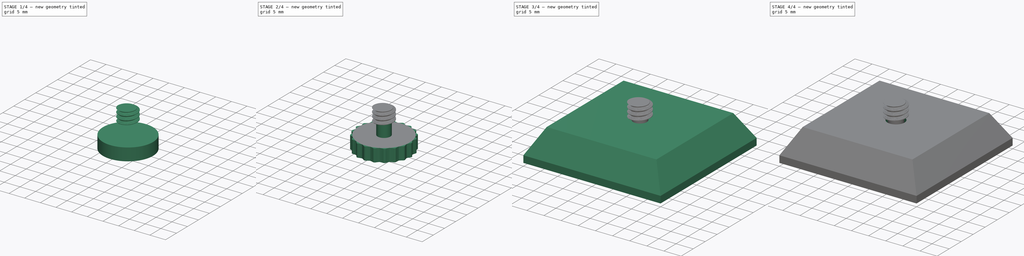
[diagram: build sequence overview — one tinted view per stage of 4, left to right]
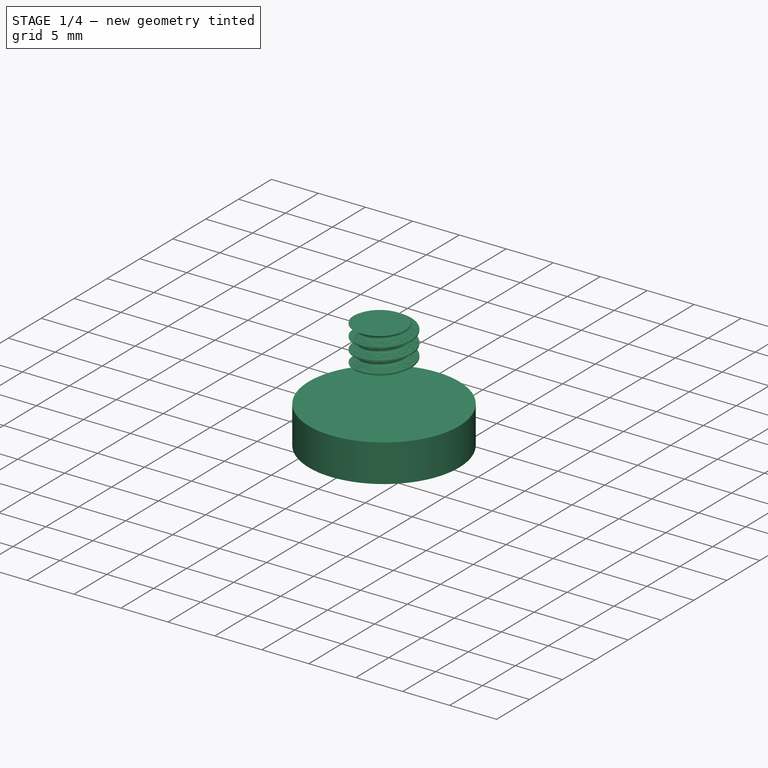
[diagram: stage 1 of 4 — iso view after this stage's code; geometry added in this stage tinted green]
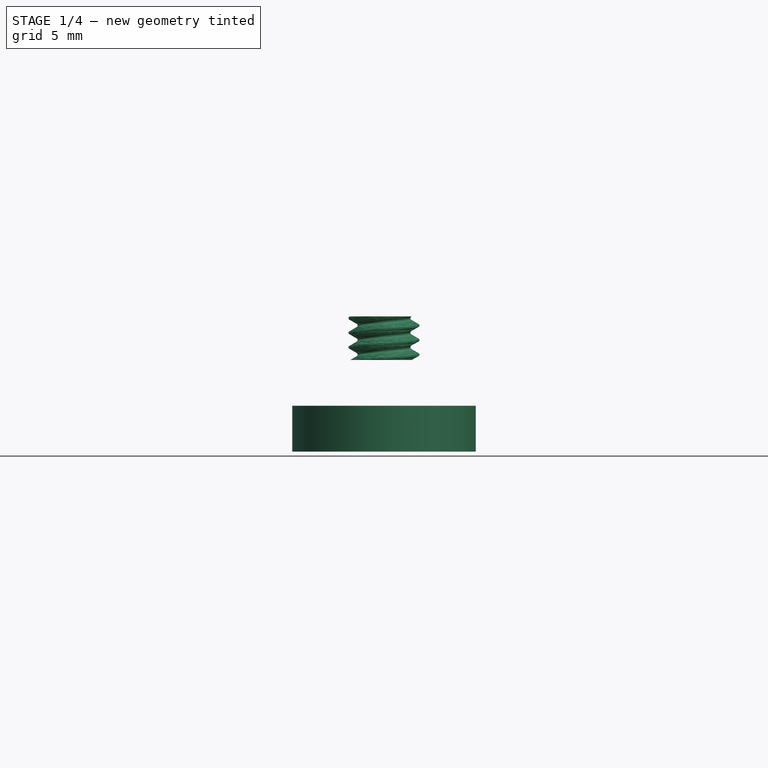
[diagram: stage 1 of 4 — front view after this stage's code; geometry added in this stage tinted green]
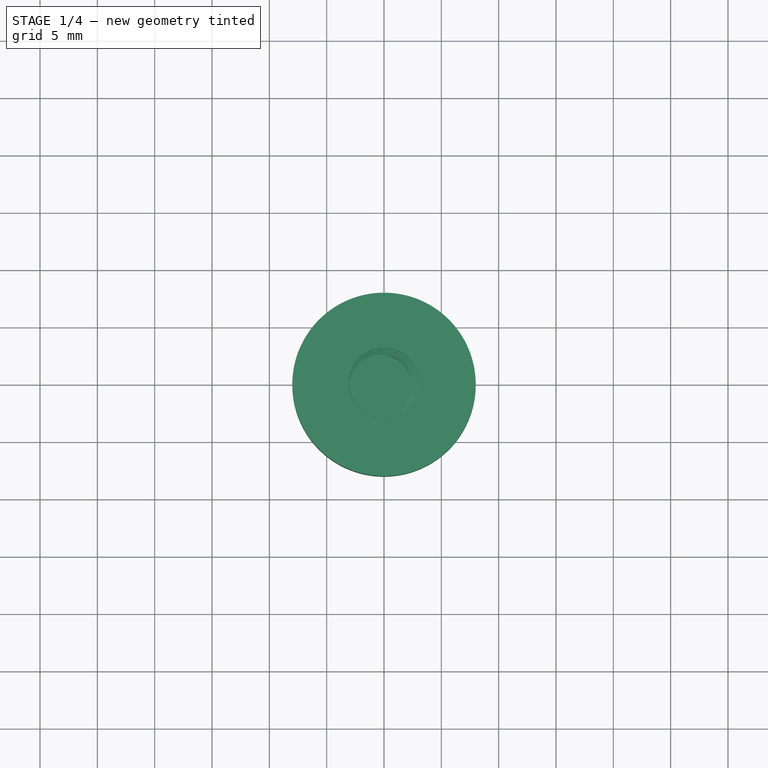
[diagram: stage 1 of 4 — top view after this stage's code; geometry added in this stage tinted green]
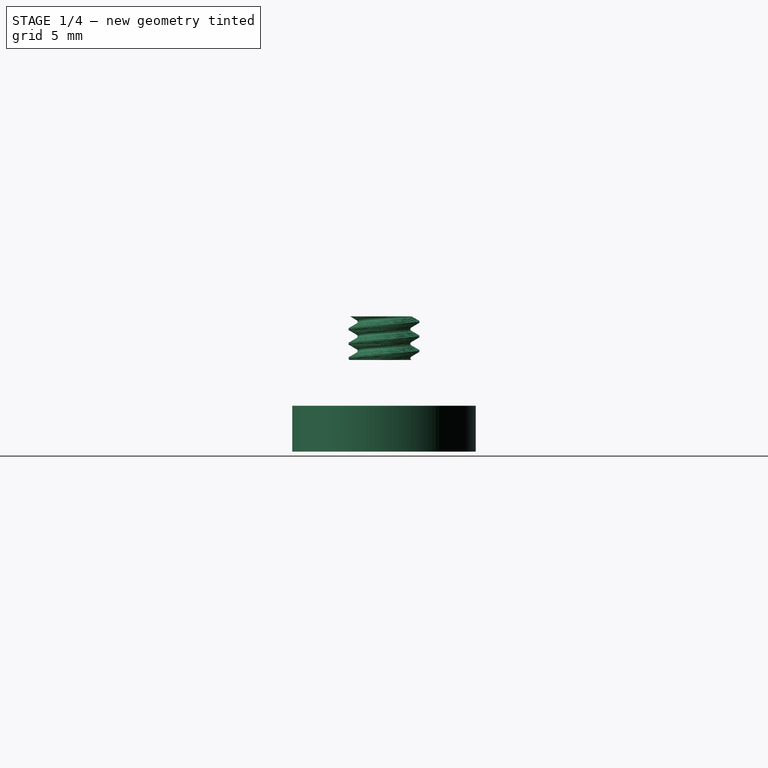
[diagram: stage 1 of 4 — right view after this stage's code; geometry added in this stage tinted green]
FCSTD DOCUMENT  (FreeCAD 0.19R22960 (Git))
Label: lock and screw
License: All rights reserved
LicenseURL: http://en.wikipedia.org/wiki/All_rights_reserved
objects: Sketcher::SketchObject×7, PartDesign::Pad×4, PartDesign::Pocket×2, PartDesign::Body×2, PartDesign::AdditiveLoft×1, Spreadsheet::Sheet×1, PartDesign::Plane×1, PartDesign::PolarPattern×1, Part::Helix×1, Part::Part2DObjectPython×1, Part::Sweep×1, Part::MultiFuse×1
note: 29 computed .brp shape members not serialized (recipe doc carries the construction recipe); baked Part::Feature solids carry a one-line shape summary decoded from their .brp

FEATURE [Spreadsheet::Sheet] Spreadsheet  label="dim"
  cells = A2=LOCK; A3=base X; B3(lock_base_x)=40; A4=base Y; B4(lock_base_y)=40; A5=base Z; B5(lock_base_z)=2; A6=raise X; B6(lock_raise_x)=32; A7=raise Y; B7(lock_raise_y)=32; A8=raise Z; B8(lock_raise_z)=7; A10=PIPE MOUNT; A11=pipe dia; B11(pipe_dia)==pipe_out_d + 0.5; A12=pipe outer dia; B12(pipe_out_d)=20; A13=pipe inner dia; B13(pipe_inner_d)=18.2; A14=pipe dist; B14(pipe_dist)=10; A15=(pipe outside); B15(pipe_outside)==pipe_dist / 2; A16=mount X; B16(pipe_mount_x)==2 * pipe_dia + pipe_dist + 2 * pipe_outside; A17=mount Y; B17(pipe_mount_y)==lock_base_y; A18=mount base Z; B18(pipe_mount_base_z)=4; A19=mount pipe Z; B19(pipe_mount_pipe_z)==pipe_dia / 2 - 1; A21=PIPE SLIDER; A22=thickness; B22(pipe_slider_thickness)=2.5; A23=width; B23(pipe_slider_width)=40; A25=MOUNT SCREW; A26=M6 head circumradius; B26(mount_screw_M6_head_circrad)=11.3; A27=M6 head depth; B27(mount_screw_M6_head_depth)=5; A28=M6 shank diameter; B28(mount_screw_M6_shank_d)=6.7; A29=M5 head circumradius; B29(mount_screw_M5_head_circrad)=8.9; A30=M5 head depth; B30(mount_screw_M5_head_depth)=4; A31=M5 shank diameter; B31(mount_screw_M5_shank_d)=5; A33=BUTTON; A34=inner diameter; B34(button_d_in)=15; A35=outer diameter; B35(button_d_out)=25; A36=height; B36(button_h)=15; A38=PIPE CAP; A39=thickness; B39(pipe_cap_thick)=2; A40=bridge; B40(pipe_cap_bridge)==pipe_dia * 3 / 4; A41=depth; B41(pipe_cap_depth)=10; A42=gap; B42(pipe_cap_gap)=1; A44=IPAD; A45=height; B45(ipad_height)=169; A46=thickness; B46(ipad_thick)=8; A48=IPAD GRAB; A49=width; B49(ipad_grab_width)=20; A50=over; B50(ipad_grab_over)=3; A51=thickness; B51(ipad_grab_thick)=3; A52=distance; B52(ipad_grab_distance)=100; A53=undercut; B53(ipad_grab_undercut)=9
FEATURE [Sketcher::SketchObject] Sketch003
  MapMode = 5
  Support = -> [XY_Plane002]
  sketch-geometry (1):
    g0: Circle CenterX=0 CenterY=0 CenterZ=0 NormalX=0 NormalY=0 NormalZ=1 AngleXU=0 Radius=8
  constraints (2):
    c: Coincident(g0,g-1)
    c: Radius(g0) = 8
FEATURE [PartDesign::Pad] Pad001
  Direction = (1,1,1)
  Length = 4
  Length2 = 100
  Profile = -> Sketch003
  Refine = true
  Type = 0
FEATURE [PartDesign::Body] Body002
  Group = -> [Sketch003,Pad001,DatumPlane001,Sketch004,Pad002,PolarPattern,Sketch007,Pad003]
  Origin = -> Origin002
  Tip = -> Pad003
FEATURE [Part::Helix] Helix
  Angle = 0
  AttacherType = Attacher::AttachEngine3D
  Height = 5.08
  LocalCoord = 0
  Pitch = 1.27
  Radius = 1
  Style = 0
  expr: .Placement.Rotation.Axis.z = VThreadProfile.Placement.Rotation.Axis.z
  expr: .Placement.Rotation.Axis.y = VThreadProfile.Placement.Rotation.Axis.y
  expr: .Placement.Rotation.Axis.x = VThreadProfile.Placement.Rotation.Axis.x
  expr: .Placement.Rotation.Angle = VThreadProfile.Placement.Rotation.Angle
  expr: .Placement.Base.z = VThreadProfile.Placement.Base.z
  expr: .Placement.Base.y = VThreadProfile.Placement.Base.y
  expr: .Placement.Base.x = VThreadProfile.Placement.Base.x
  expr: Height = VThreadProfile.ThreadCount * VThreadProfile.Pitch
  expr: Pitch = VThreadProfile.Pitch
FEATURE [Part::Part2DObjectPython] VThreadProfile  # Draft 2D object (typed FeaturePython)
  Area = 22.828
  Closed = true
  Continuity = C3
  Instructions = Expand this with the ... button to view instructions | Sweep this object along a helix of the same pitch to produce your thread. | It is recommended to make the helix in the ThreadProfile workbench. | If there is an active Body the ThreadProfile object will be put into it.,If not it can be dragged and dropped into the body later. | If there is an active Body when the helix is made there will be made a ShapeBinder for it | For internal threads you will need to cut the Sweep object out of a cylinder, or if using Part Design sweep it as a Subtractive Pipe. | Always use Frenet mode | I have provided some presets, but it is possible there could be some errors.  Double check for mission critical applications. | Also, the tolerances might be different from what you wish to have.  I believe the internal minor diameters are all minimum and the external are all maximum.
  InternalOrExternal = 1
  MakeFace = true
  MinorDiameter = 4.79298
  Parameterization = 1
  Pitch = 1.27
  Points = (719) [(2.39341,0.020916,0),(2.39027,0.0417803,0),(2.38706,0.0625944,0),(2.38378,0.0833591,0),(2.38041,0.104075,0),(2.37694,0.124744,0),(2.37339,0.145365,0),+712 more]
  Presets = 213
  Quality = 1
  ThreadCount = 4
  Version = 1.66
  external_data = [-0.00235387,-0.00461052,-0.00677828,-0.00886428,-0.0108747,-0.0128149,-0.0146895,-0.0165028,-0.0182584,-0.0199597,-0.0216095,-0.0232106,-0.0247653,-0.0262759,-0.0277444,-0.0291725,-0.0305621,-0.0319145,-0.0332313,-0.0345138,-0.0357632,+698 more]
  internal_data = [0,0,0,0,0,0,0,0,0,0,0,0,0,0,0,0,0,0,0,0,0,0,0,0,0,0,0,0,0,0,0,0,0,0,0,0,0,0,0,0,0,0,0,0,0,0,0,0,0,0,0,0,0,0,0,0,0,0,0,0,0,0,0,0,0,0,0,0,0,0,0,0,0,0,0,0,0,0,0,0,0,0,0,0,0,0,0,0,0,0,0,0,0,0,0,0,0,0,0,0,0,0,0,0,0,0,0,0,0,0,0,0,0,0,0,0,0,0,0,0,+599 more]
  preset_names = <blob: 3959 chars omitted>
  presets_data = [0,0,0,2.20878,24.1173,24.6888,0.25,0.693,0.729,0.25,0.793,0.829,0.25,0.893,0.929,0.3,1.032,1.075,0.35,1.171,1.221,0.35,1.371,1.421,0.4,1.509,1.567,0.45,1.648,1.713,0.45,1.948,2.013,0.5,2.387,2.459,0.6,2.764,2.85,0.7,3.141,3.242,0.75,3.58,+712 more]
FEATURE [Part::Sweep] Sweep
  Frenet = true
  Placement = pos=(0,0,7.99) rot=(0,0,1;0rad)
  Sections = -> [VThreadProfile]
  Solid = true
  Spine = -> Helix [Edge1,Edge2,Edge3]
  Transition = 1
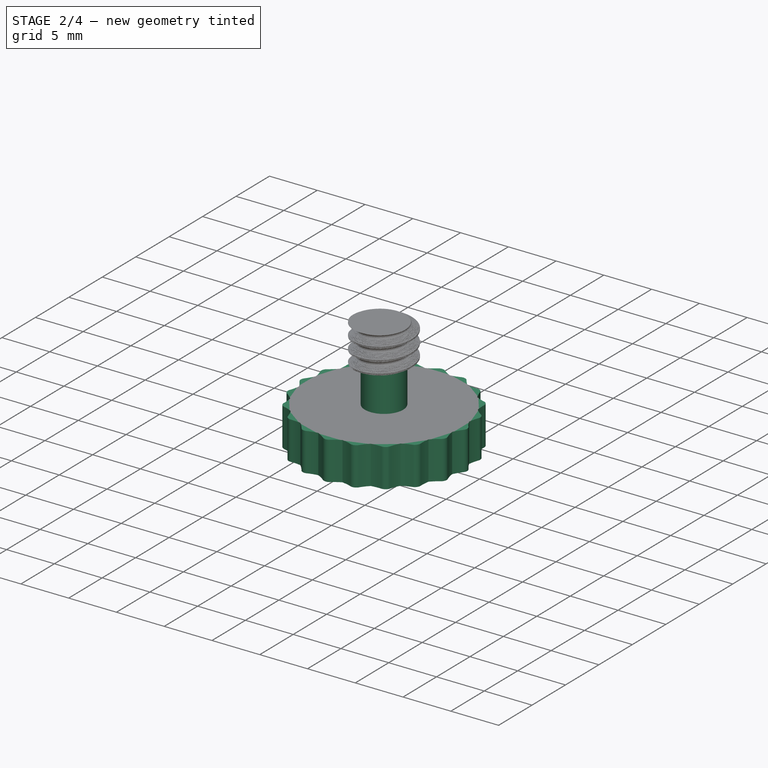
[diagram: stage 2 of 4 — iso view after this stage's code; geometry added in this stage tinted green]
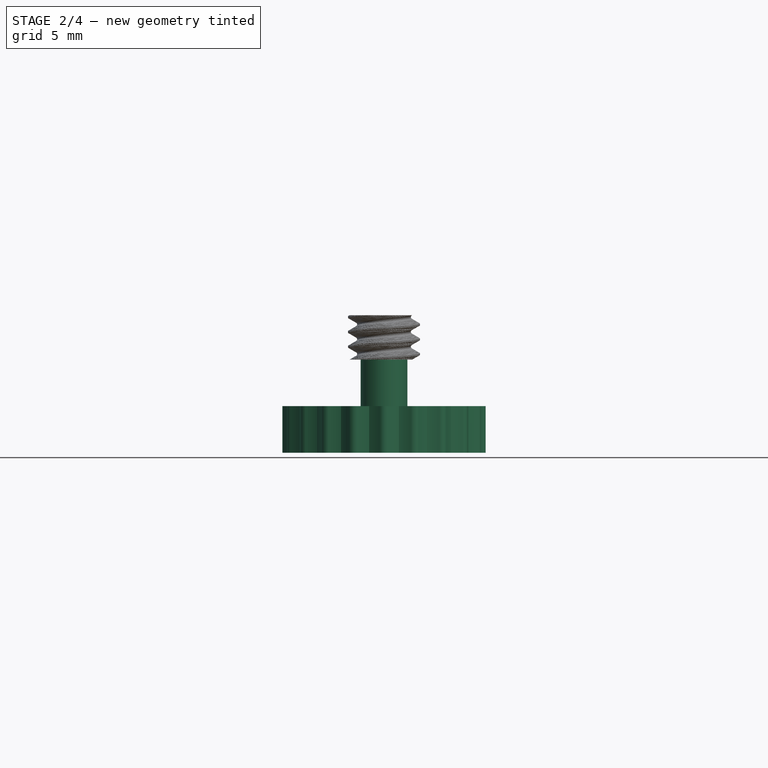
[diagram: stage 2 of 4 — front view after this stage's code; geometry added in this stage tinted green]
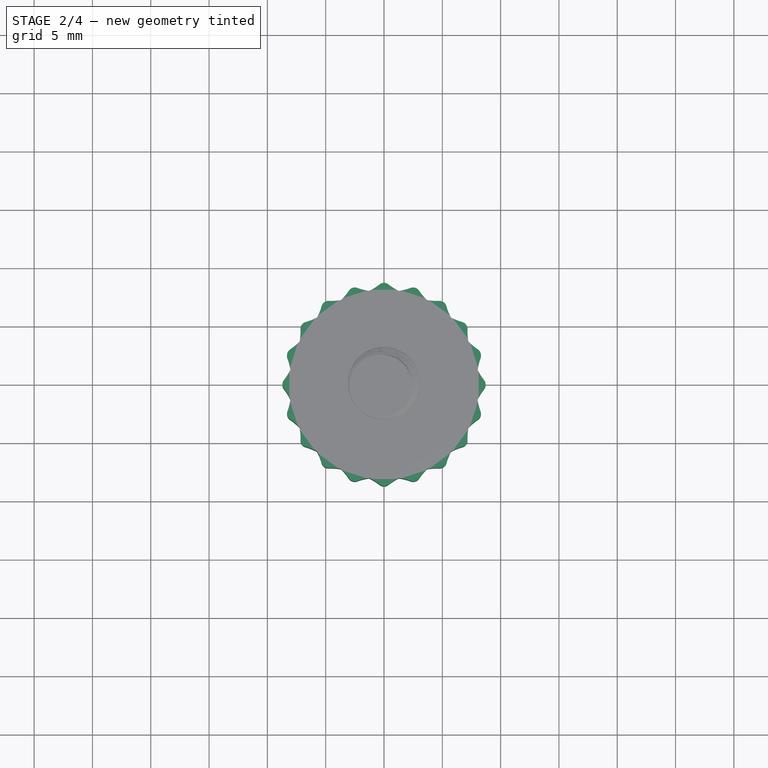
[diagram: stage 2 of 4 — top view after this stage's code; geometry added in this stage tinted green]
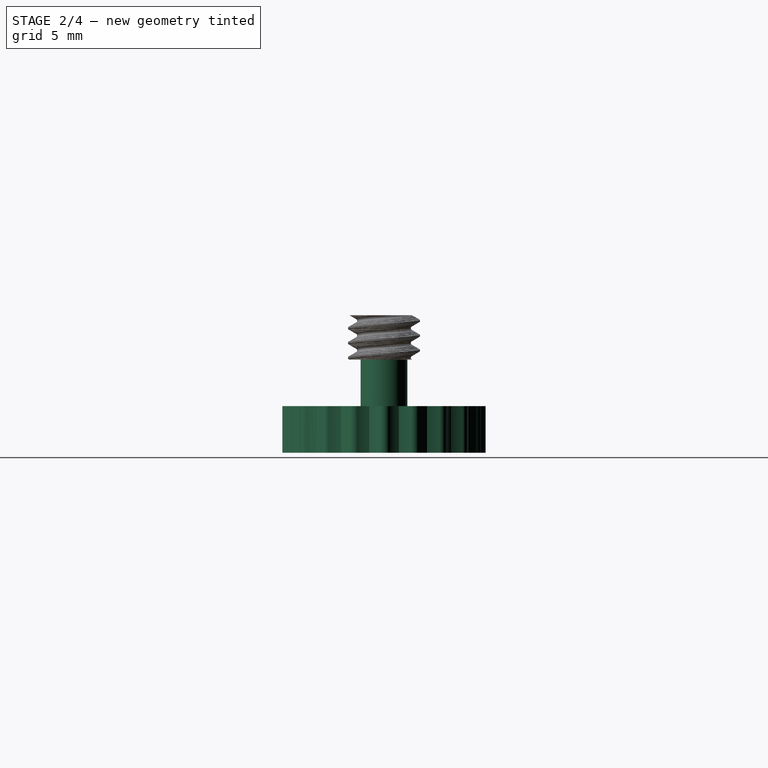
[diagram: stage 2 of 4 — right view after this stage's code; geometry added in this stage tinted green]
FEATURE [PartDesign::Plane] DatumPlane001
  Length = 60
  MapMode = 5
  Placement = pos=(0,0,4) rot=(0,0,1;0rad)
  ResizeMode = 0
  Support = -> [Pad001]
  Width = 60
FEATURE [Sketcher::SketchObject] Sketch004
  ExternalGeometry = -> [Pad001]
  MapMode = 5
  Placement = pos=(0,0,4) rot=(0,0,1;0rad)
  Support = -> [DatumPlane001]
  expr: Constraints[16] = 360 / 12
  sketch-geometry (6):
    g0: LineSegment [constr] StartX=0 StartY=0 StartZ=0 EndX=7.72741 EndY=2.07055 EndZ=0
    g1: LineSegment [constr] StartX=0 StartY=0 StartZ=0 EndX=7.72741 EndY=-2.07055 EndZ=0
    g2: ArcOfCircle CenterX=12.2372 CenterY=3.27894 CenterZ=0 NormalX=0 NormalY=0 NormalZ=1 AngleXU=0 Radius=4.66886 StartAngle=3.40339 EndAngle=3.8133
    g3: ArcOfCircle CenterX=12.2372 CenterY=-3.27894 CenterZ=0 NormalX=0 NormalY=0 NormalZ=1 AngleXU=0 Radius=4.66886 StartAngle=2.46988 EndAngle=2.87979
    g4: ArcOfCircle CenterX=8.11293 CenterY=0 CenterZ=0 NormalX=0 NormalY=0 NormalZ=1 AngleXU=0 Radius=0.6 StartAngle=5.61148 EndAngle=6.95489
    g5: LineSegment StartX=7.72741 StartY=2.07055 StartZ=0 EndX=7.72741 EndY=-2.07055 EndZ=0
  constraints (18):
    c: Coincident(g0,g-1)
    c: PointOnObject(g0,g-3)
    c: Coincident(g1,g-1)
    c: PointOnObject(g1,g-3)
    c: Vertical(g0,g1)
    c: Coincident(g2,g0)
    c: Coincident(g3,g1)
    c: Equal(g2,g3)
    c: Tangent(g3,g-3)
    c: Tangent(g-3,g2)
    c: Vertical(g2,g3)
    c: PointOnObject(g4,g-1)
    c: Coincident(g4,g3)
    c: Tangent(g4,g2) = 1.5708
    c: Coincident(g5,g2)
    c: Coincident(g5,g3)
    c: Angle(g1,g0) = 0.523599
    c: Radius(g4) = 0.6
FEATURE [PartDesign::Pad] Pad002
  BaseFeature = -> Pad001
  Direction = (1,1,1)
  Length = 4
  Length2 = 100
  Profile = -> Sketch004
  Refine = true
  Reversed = true
  Type = 0
FEATURE [PartDesign::PolarPattern] PolarPattern
  Angle = 360
  Axis = -> Sketch004 [N_Axis]
  BaseFeature = -> Pad002
  Occurrences = 20
  Originals = -> [Pad002]
  Refine = true
FEATURE [PartDesign::Body] Body  label="lock"
  Group = -> [Sketch,Pad,Sketch001,AdditiveLoft,Sketch005,Pocket,Sketch006,Pocket001]
  Origin = -> Origin001
  Tip = -> Pocket001
FEATURE [Sketcher::SketchObject] Sketch007
  MapMode = 5
  Placement = pos=(0,0,4) rot=(0,0,1;0rad)
  Support = -> [PolarPattern]
  sketch-geometry (1):
    g0: Circle CenterX=0 CenterY=0 CenterZ=0 NormalX=0 NormalY=0 NormalZ=1 AngleXU=0 Radius=2
  constraints (2):
    c: Coincident(g0,g-1)
    c: Diameter(g0) = 4
FEATURE [PartDesign::Pad] Pad003
  BaseFeature = -> PolarPattern
  Direction = (1,1,1)
  Length = 4
  Length2 = 100
  Profile = -> Sketch007
  Refine = true
  Type = 0
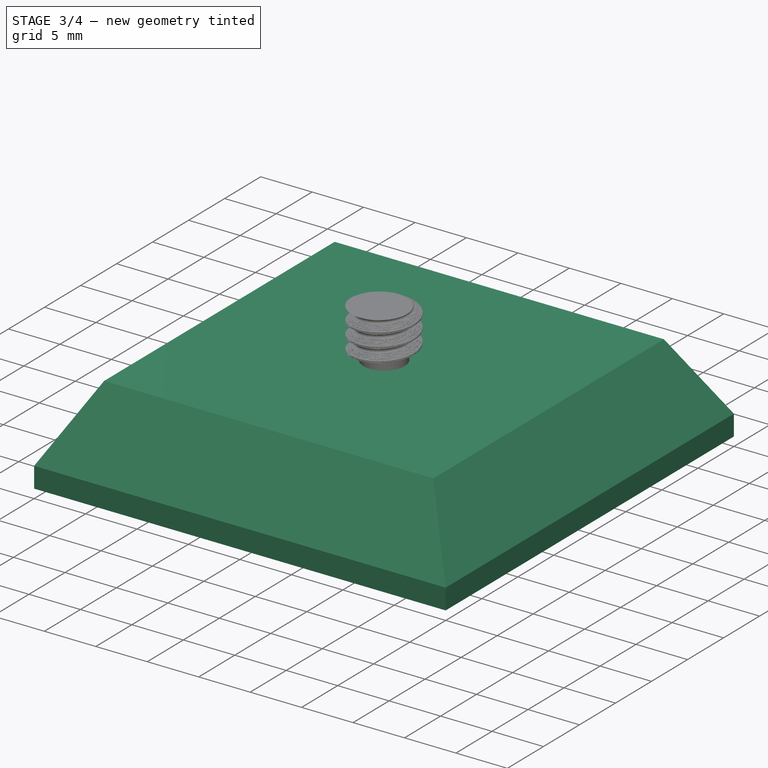
[diagram: stage 3 of 4 — iso view after this stage's code; geometry added in this stage tinted green]
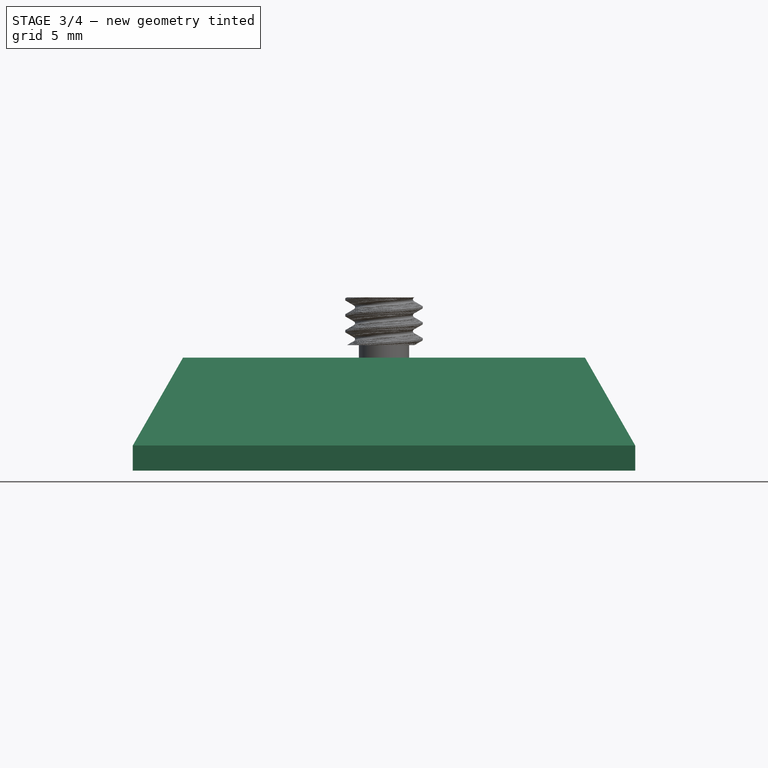
[diagram: stage 3 of 4 — front view after this stage's code; geometry added in this stage tinted green]
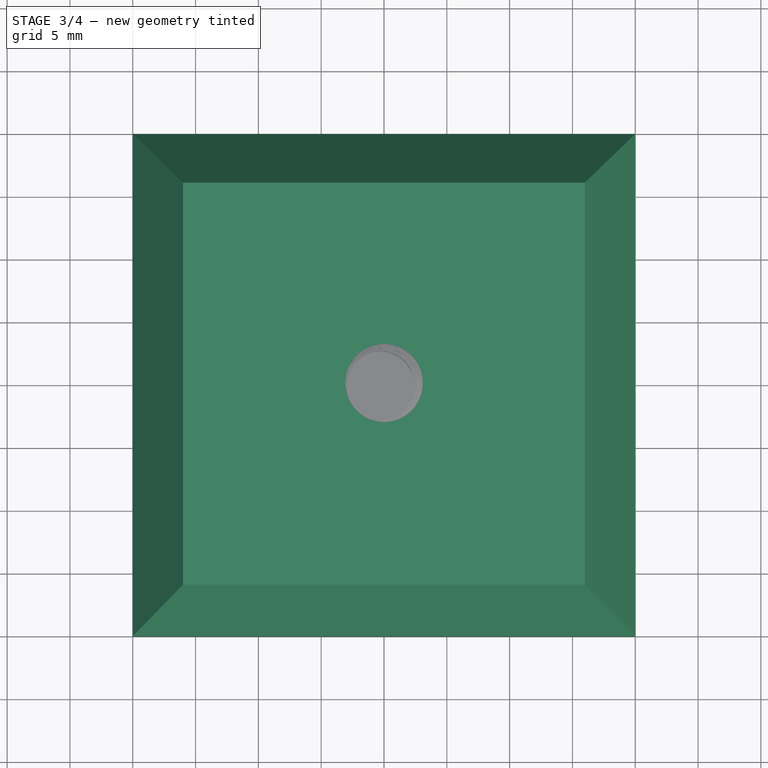
[diagram: stage 3 of 4 — top view after this stage's code; geometry added in this stage tinted green]
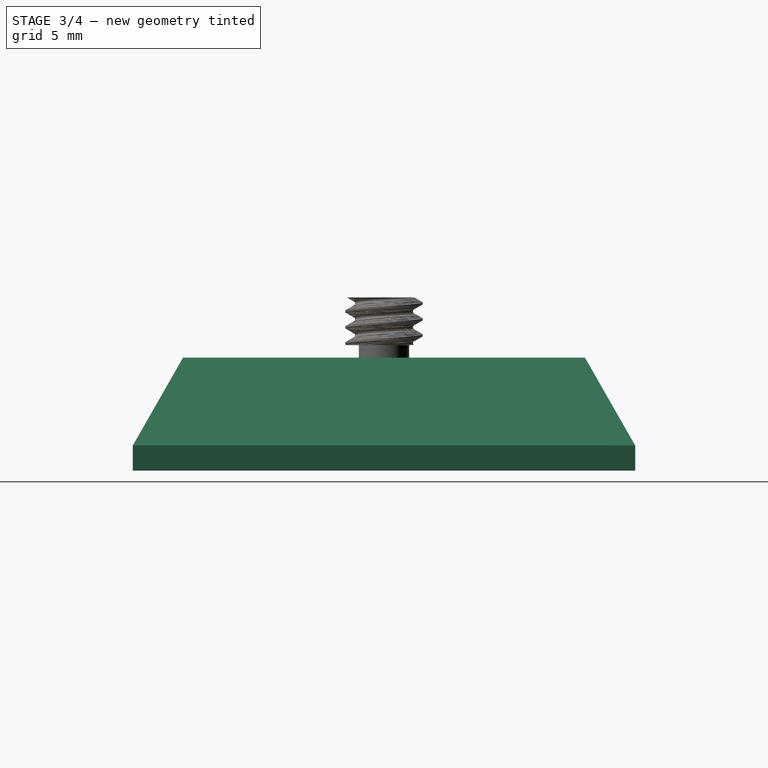
[diagram: stage 3 of 4 — right view after this stage's code; geometry added in this stage tinted green]
FEATURE [Sketcher::SketchObject] Sketch001  label="lock raise sk"
  AttachmentOffset = pos=(0,0,7) rot=(0,0,1;0rad)
  MapMode = 5
  Placement = pos=(0,0,7) rot=(0,0,1;0rad)
  Support = -> [XY_Plane001]
  expr: Constraints[10] = <<dim>>.lock_raise_y
  expr: Constraints[9] = <<dim>>.lock_raise_x
  expr: .AttachmentOffset.Base.z = <<dim>>.lock_raise_z
  sketch-geometry (4):
    g0: LineSegment StartX=-16 StartY=16 StartZ=0 EndX=16 EndY=16 EndZ=0
    g1: LineSegment StartX=16 StartY=16 StartZ=0 EndX=16 EndY=-16 EndZ=0
    g2: LineSegment StartX=16 StartY=-16 StartZ=0 EndX=-16 EndY=-16 EndZ=0
    g3: LineSegment StartX=-16 StartY=-16 StartZ=0 EndX=-16 EndY=16 EndZ=0
  constraints (11):
    c: Coincident(g0,g1)
    c: Coincident(g1,g2)
    c: Coincident(g2,g3)
    c: Coincident(g3,g0)
    c: Horizontal(g0)
    c: Horizontal(g2)
    c: Vertical(g1)
    c: Vertical(g3)
    c: Symmetric(g0,g1,g-1)
    c: DistanceX(g0,g0) = 32
    c: DistanceY(g1,g1) = 32
FEATURE [Sketcher::SketchObject] Sketch  label="lock base sk"
  MapMode = 5
  Support = -> [XY_Plane001]
  expr: Constraints[10] = <<dim>>.lock_base_y
  expr: Constraints[9] = <<dim>>.lock_base_x
  sketch-geometry (4):
    g0: LineSegment StartX=-20 StartY=20 StartZ=0 EndX=20 EndY=20 EndZ=0
    g1: LineSegment StartX=20 StartY=20 StartZ=0 EndX=20 EndY=-20 EndZ=0
    g2: LineSegment StartX=20 StartY=-20 StartZ=0 EndX=-20 EndY=-20 EndZ=0
    g3: LineSegment StartX=-20 StartY=-20 StartZ=0 EndX=-20 EndY=20 EndZ=0
  constraints (11):
    c: Coincident(g0,g1)
    c: Coincident(g1,g2)
    c: Coincident(g2,g3)
    c: Coincident(g3,g0)
    c: Horizontal(g0)
    c: Horizontal(g2)
    c: Vertical(g1)
    c: Vertical(g3)
    c: Symmetric(g0,g1,g-1)
    c: DistanceX(g0,g0) = 40
    c: DistanceY(g1,g1) = 40
FEATURE [PartDesign::Pad] Pad  label="lock base"
  Direction = (1,1,1)
  Length = 2
  Length2 = 100
  Profile = -> Sketch
  Refine = true
  Reversed = true
  Type = 0
  expr: Length = <<dim>>.lock_base_z
FEATURE [PartDesign::AdditiveLoft] AdditiveLoft  label="lock raise"
  BaseFeature = -> Pad
  Closed = true
  Profile = -> Sketch
  Refine = true
  Ruled = true
  Sections = -> [Sketch001]
FEATURE [Part::MultiFuse] Fusion
  Refine = true
  Shapes = -> [Body002,Sweep]
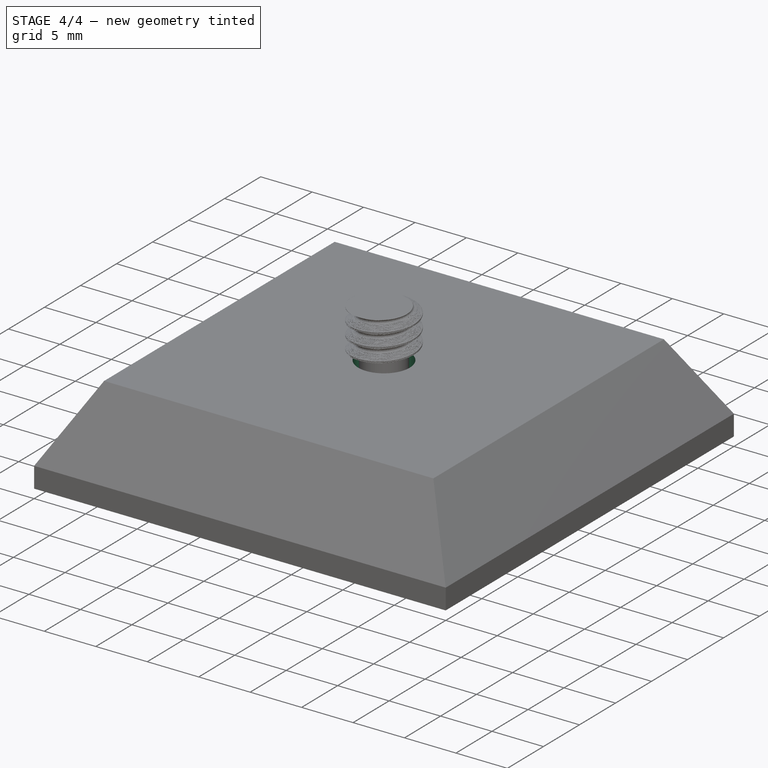
[diagram: stage 4 of 4 — iso view after this stage's code; geometry added in this stage tinted green]
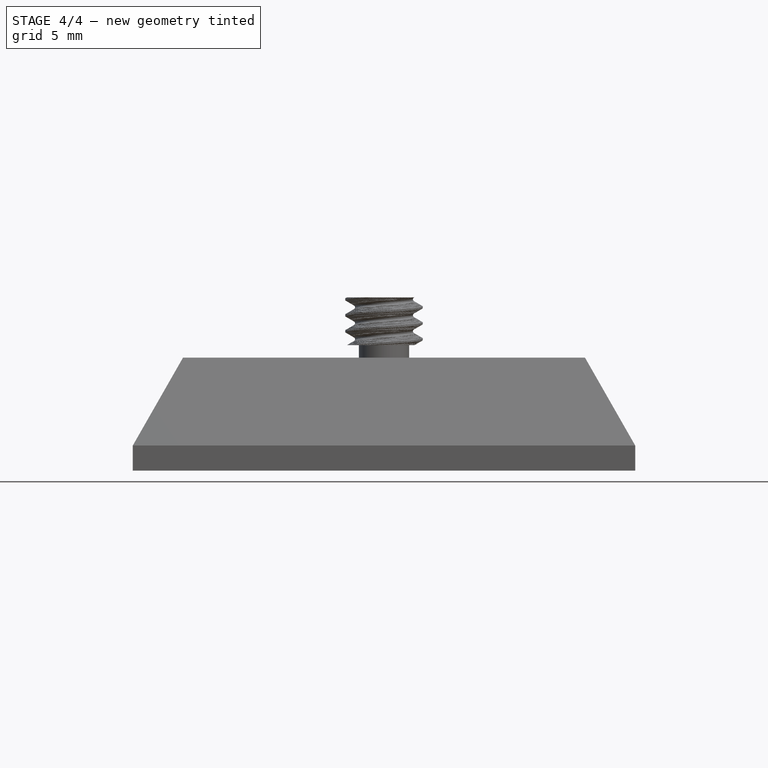
[diagram: stage 4 of 4 — front view after this stage's code; geometry added in this stage tinted green]
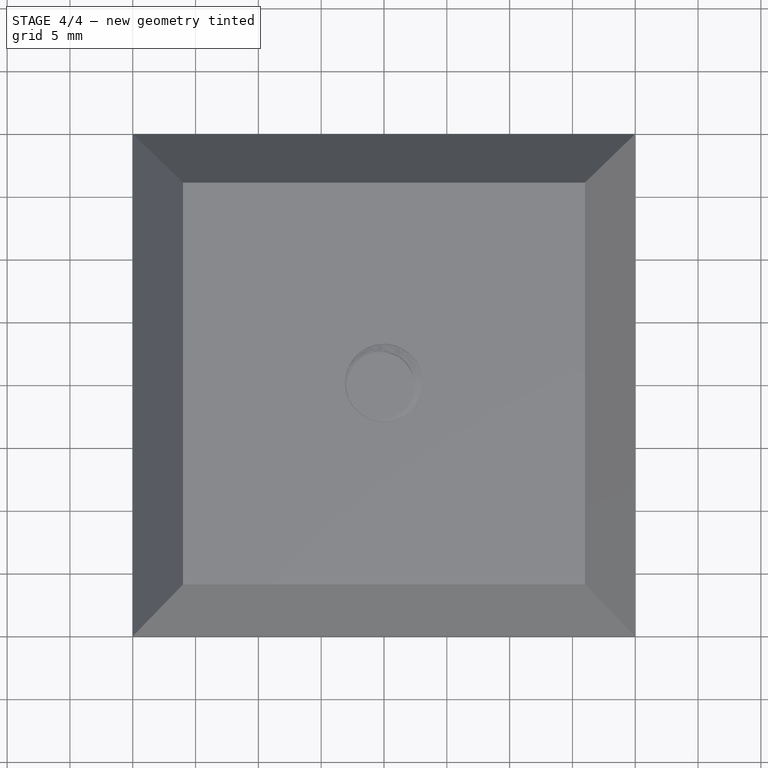
[diagram: stage 4 of 4 — top view after this stage's code; geometry added in this stage tinted green]
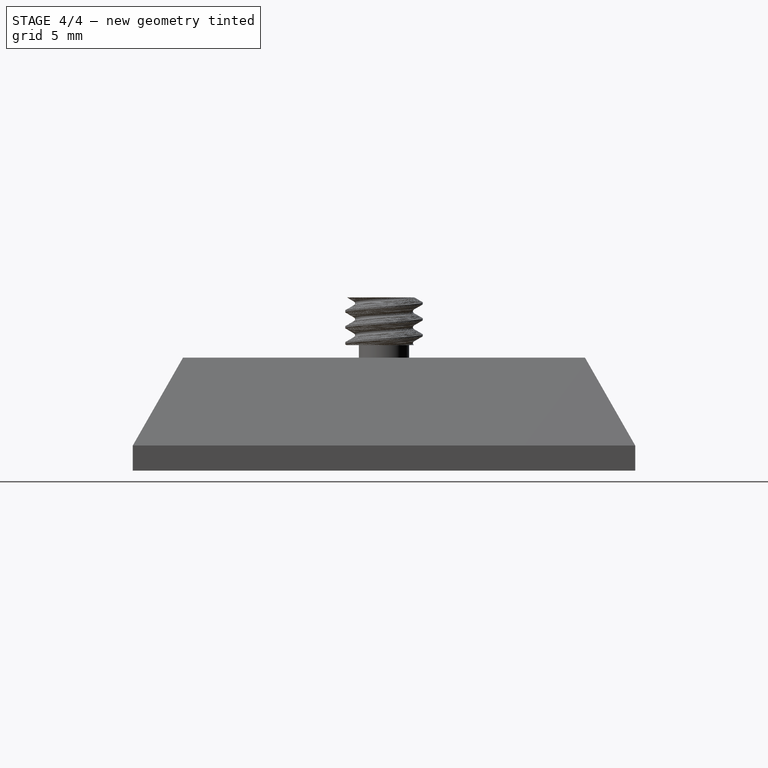
[diagram: stage 4 of 4 — right view after this stage's code; geometry added in this stage tinted green]
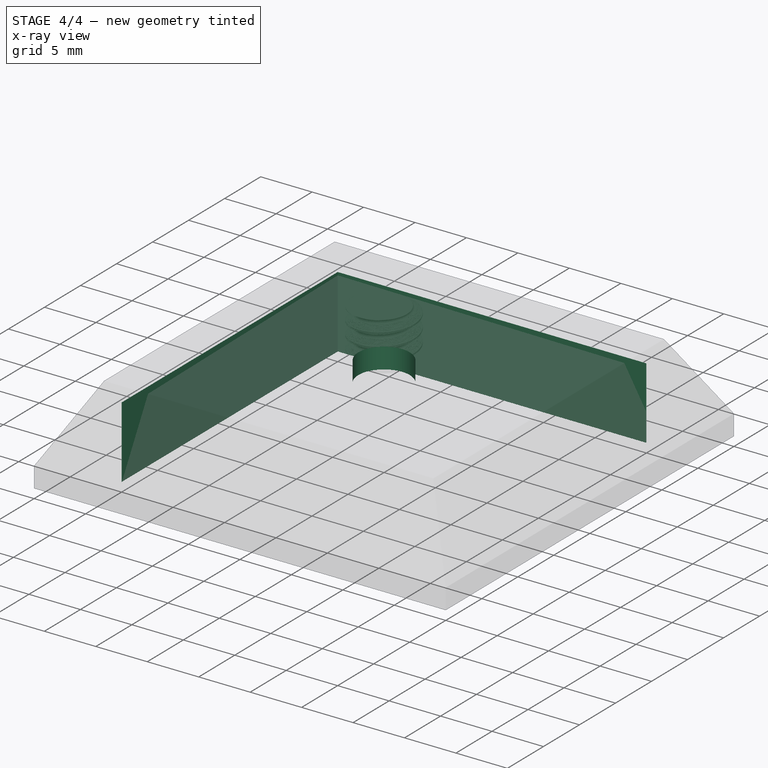
[diagram: stage 4 of 4 — x-ray composite at the iso view; earlier geometry ghosted, this stage's added geometry solid]
FEATURE [Sketcher::SketchObject] Sketch005
  ExternalGeometry = -> [AdditiveLoft]
  MapMode = 5
  Placement = pos=(0,0,-2) rot=(1,0,0;3.14159rad)
  Support = -> [AdditiveLoft]
  sketch-geometry (4):
    g0: LineSegment StartX=-15 StartY=15 StartZ=0 EndX=15 EndY=15 EndZ=0
    g1: LineSegment StartX=15 StartY=15 StartZ=0 EndX=15 EndY=-15 EndZ=0
    g2: LineSegment StartX=15 StartY=-15 StartZ=0 EndX=-15 EndY=-15 EndZ=0
    g3: LineSegment StartX=-15 StartY=-15 StartZ=0 EndX=-15 EndY=15 EndZ=0
  constraints (11):
    c: Coincident(g0,g1)
    c: Coincident(g1,g2)
    c: Coincident(g2,g3)
    c: Coincident(g3,g0)
    c: Horizontal(g0)
    c: Horizontal(g2)
    c: Vertical(g1)
    c: Vertical(g3)
    c: Symmetric(g1,g0,g-1)
    c: DistanceX(g1,g-4) = 1
    c: DistanceY(g-4,g1) = 1
FEATURE [PartDesign::Pocket] Pocket
  BaseFeature = -> AdditiveLoft
  Length = 7
  Length2 = 100
  Profile = -> Sketch005
  Refine = true
  Type = 0
FEATURE [Sketcher::SketchObject] Sketch006
  MapMode = 5
  Placement = pos=(0,0,7) rot=(0,0,1;0rad)
  Support = -> [Pocket]
  sketch-geometry (1):
    g0: Circle CenterX=0 CenterY=0 CenterZ=0 NormalX=0 NormalY=0 NormalZ=1 AngleXU=0 Radius=2.5
  constraints (2):
    c: Coincident(g0,g-1)
    c: Diameter(g0) = 5
FEATURE [PartDesign::Pocket] Pocket001
  BaseFeature = -> Pocket
  Length = 5
  Length2 = 100
  Profile = -> Sketch006
  Refine = true
  Type = 1
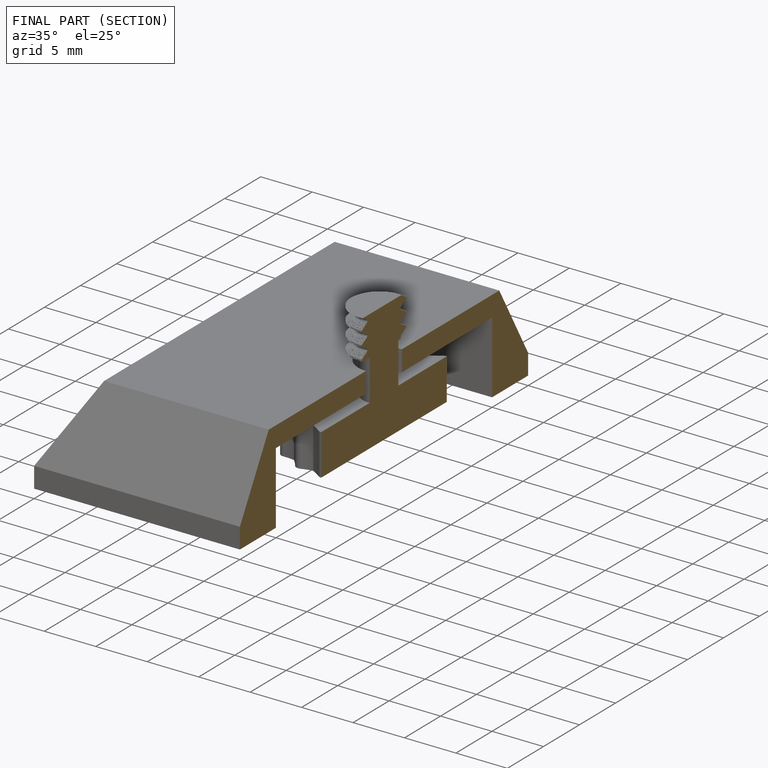
[diagram: finished part — half-section view (interior)]
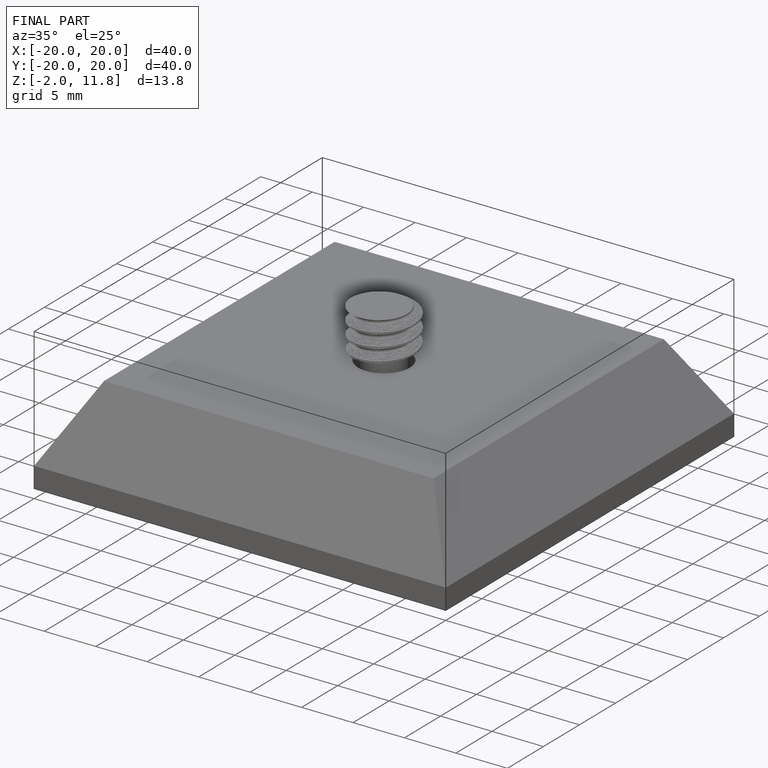
[diagram: finished part — iso view with bounding-box wireframe]
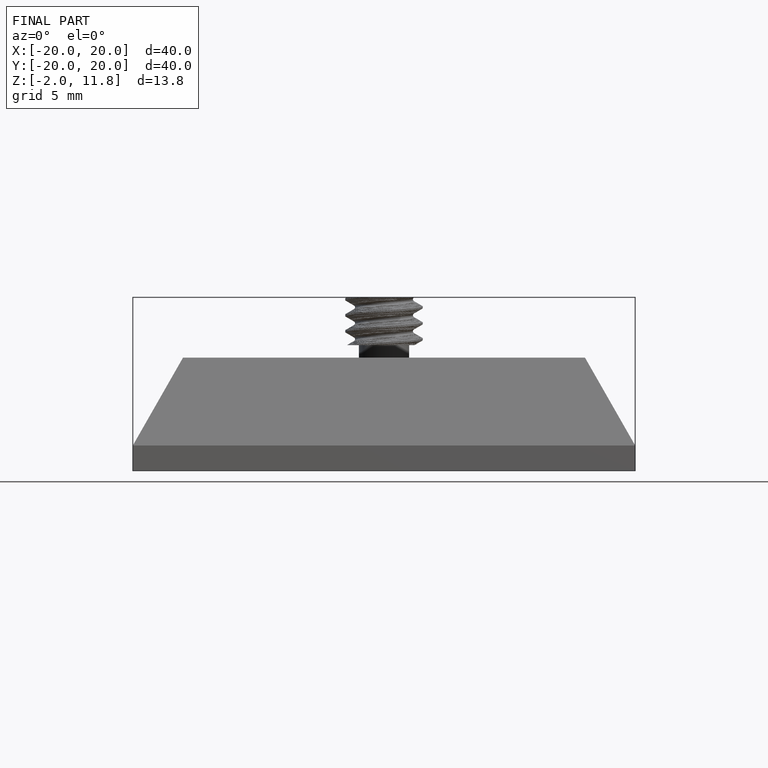
[diagram: finished part — front view with bounding-box wireframe]
